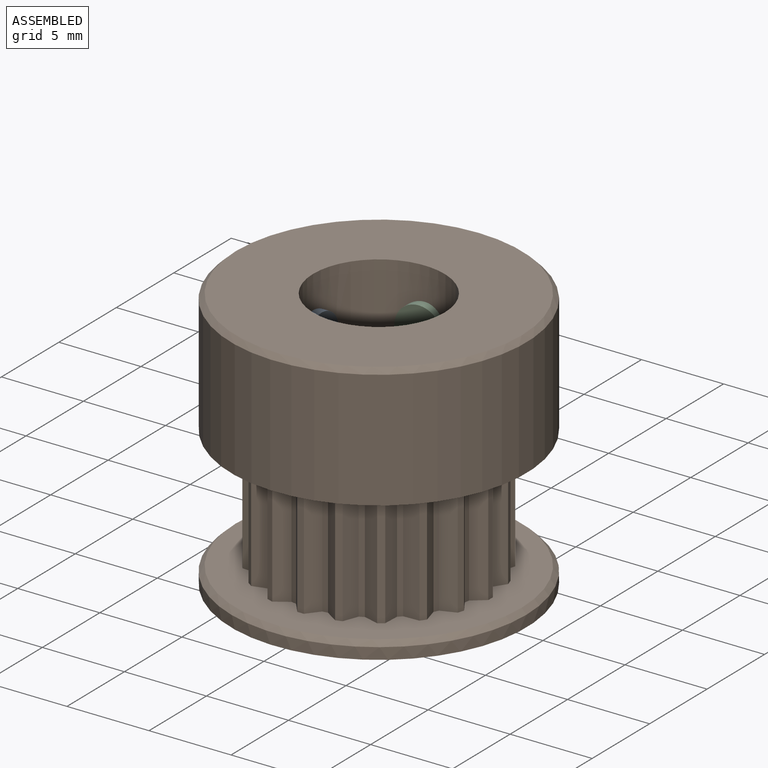
[diagram: assembled view]
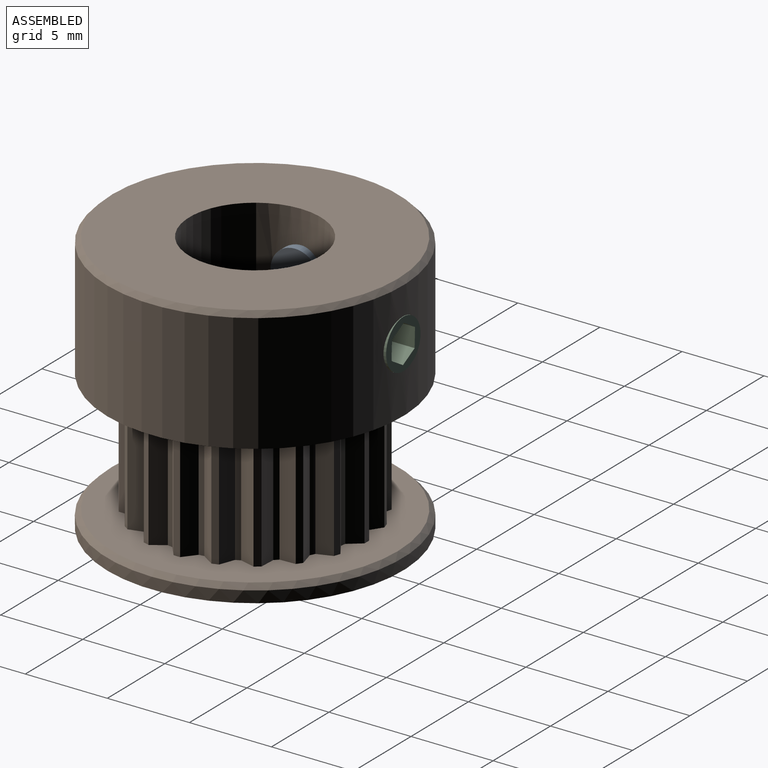
[diagram: assembled view, second angle]
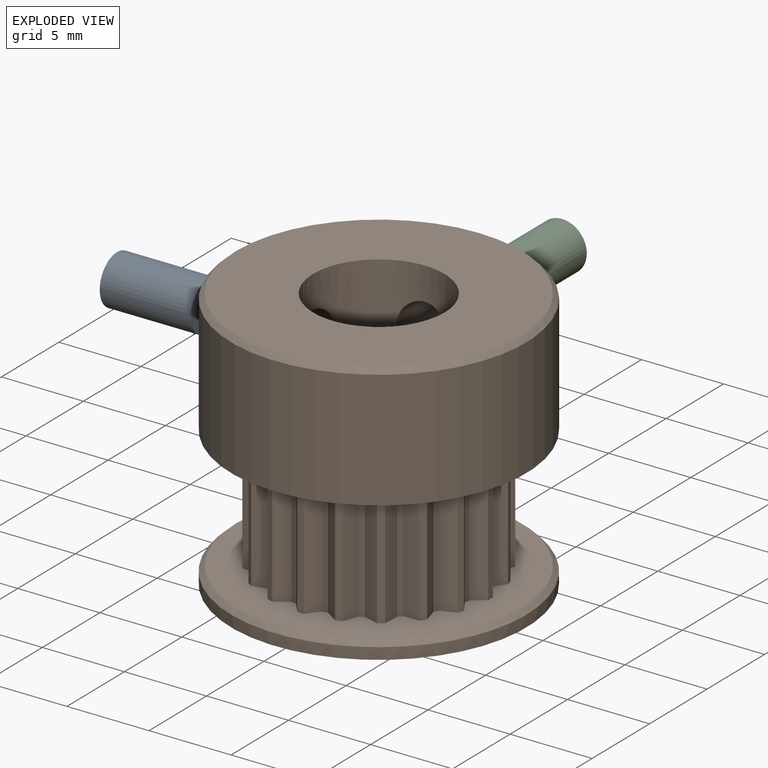
[diagram: exploded view]
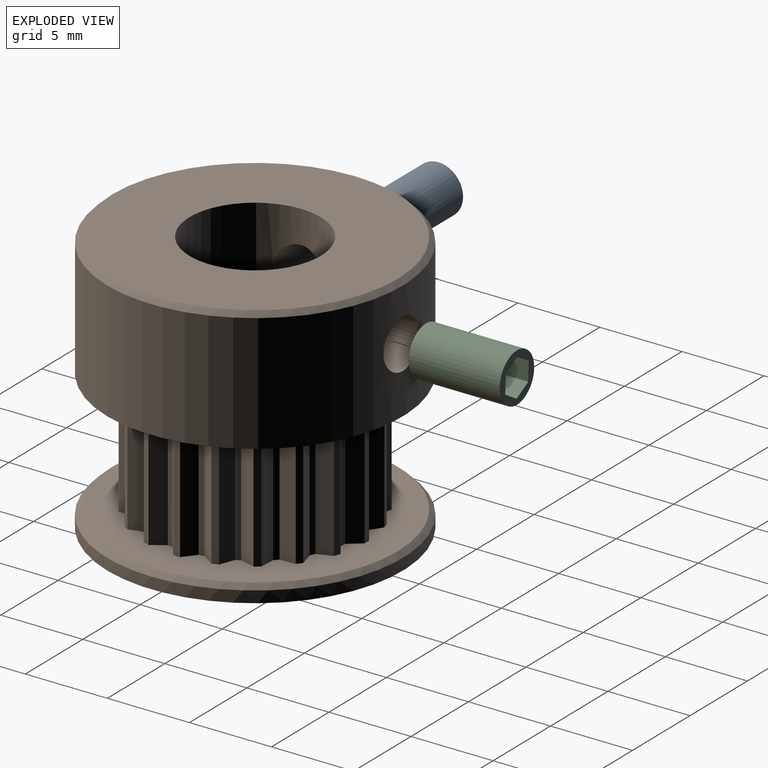
[diagram: exploded view, second angle]
ASSEMBLY  parts=3 mates=2
PART A: 10 faces, bbox 5.6x3x3 mm
  f0: cylinder r=1.5mm len=5.55mm, axis (-1,0,0), area 52.3mm2, adj f1,f2
  f1: plane 3x3mm, normal (1,0,0), area 7.1mm2, adj f0
  f2: plane 3x3mm, normal (-1,0,0), area 3.6mm2, adj f0,f3,f4,f5,f6,f7,f8
  f3: plane 1.4x0.98mm, normal (0,-0.52,0.85), area 1.6mm2, adj f2,f4,f8,f9
  f4: plane 1.4x1.02mm, normal (0,0.48,0.88), area 1.6mm2, adj f2,f3,f5,f9
  f5: plane 1.4x1.15mm, normal (0,1,0.03), area 1.6mm2, adj f2,f4,f6,f9
  f6: plane 1.4x0.98mm, normal (0,0.52,-0.85), area 1.6mm2, adj f2,f5,f7,f9
  f7: plane 1.4x1.02mm, normal (0,-0.48,-0.88), area 1.6mm2, adj f2,f6,f8,f9
  f8: plane 1.4x1.15mm, normal (0,-1,-0.03), area 1.6mm2, adj f2,f3,f7,f9
  f9: plane 2.31x2.03mm, normal (-1,0,0), area 3.5mm2, adj f3,f4,f5,f6,f7,f8
PART B: 91 faces, bbox 18x18x16 mm
  f0: cylinder r=1.5mm len=5.29mm, axis (0,-1,0), area 47.9mm2, adj f81,f84
  f1: cylinder r=6.11mm len=7.5mm, axis (0,0,-1), area 2.4mm2, adj f4,f79,f80,f85
  f2: plane 7.5x0.9mm, normal (0.94,-0.35,0), area 7.2mm2, adj f3,f5,f79,f80
  f3: plane 7.5x0.38mm, normal (0.31,-0.95,0), area 3mm2, adj f2,f4,f79,f80
  f4: plane 7.5x0.8mm, normal (-0.55,-0.83,0), area 7.2mm2, adj f1,f3,f79,f80
  f5: cylinder r=6.11mm len=7.5mm, axis (0,0,-1), area 2.4mm2, adj f2,f8,f79,f80
  f6: plane 7.5x0.96mm, normal (1,-0.04,0), area 7.2mm2, adj f7,f9,f79,f80
  f7: plane 7.5x0.32mm, normal (0.59,-0.81,0), area 3mm2, adj f6,f8,f79,f80
  f8: plane 7.5x0.93mm, normal (-0.27,-0.96,0), area 7.2mm2, adj f5,f7,f79,f80
  f9: cylinder r=6.11mm len=7.5mm, axis (0,0,-1), area 2.4mm2, adj f6,f12,f79,f80
  f10: plane 7.5x0.93mm, normal (0.96,0.27,0), area 7.2mm2, adj f11,f13,f79,f80
  f11: plane 7.5x0.32mm, normal (0.81,-0.59,0), area 3mm2, adj f10,f12,f79,f80
  f12: plane 7.5x0.96mm, normal (0.04,-1,0), area 7.2mm2, adj f9,f11,f79,f80
  f13: cylinder r=6.11mm len=7.5mm, axis (0,0,-1), area 2.4mm2, adj f10,f16,f79,f80
  f14: plane 7.5x0.8mm, normal (0.83,0.55,0), area 7.2mm2, adj f15,f17,f79,f80
  f15: plane 7.5x0.38mm, normal (0.95,-0.31,0), area 3mm2, adj f14,f16,f79,f80
  f16: plane 7.5x0.9mm, normal (0.35,-0.94,0), area 7.2mm2, adj f13,f15,f79,f80
  f17: cylinder r=6.11mm len=7.5mm, axis (0,0,-1), area 2.4mm2, adj f14,f20,f79,f80
  f18: plane 7.5x0.75mm, normal (0.62,0.78,0), area 7.2mm2, adj f19,f21,f79,f80
  f19: plane 7.5x0.4mm, normal (1,0,0), area 3mm2, adj f18,f20,f79,f80
  f20: plane 7.5x0.75mm, normal (0.62,-0.78,0), area 7.2mm2, adj f17,f19,f79,f80
  f21: cylinder r=6.11mm len=7.5mm, axis (0,0,-1), area 2.4mm2, adj f18,f24,f79,f80
  f22: plane 7.5x0.9mm, normal (0.35,0.94,0), area 7.2mm2, adj f23,f25,f79,f80
  f23: plane 7.5x0.38mm, normal (0.95,0.31,0), area 3mm2, adj f22,f24,f79,f80
  f24: plane 7.5x0.8mm, normal (0.83,-0.55,0), area 7.2mm2, adj f21,f23,f79,f80
  f25: cylinder r=6.11mm len=7.5mm, axis (0,0,-1), area 2.4mm2, adj f22,f28,f79,f80
  f26: plane 7.5x0.96mm, normal (0.04,1,0), area 7.2mm2, adj f27,f29,f79,f80
  f27: plane 7.5x0.32mm, normal (0.81,0.59,0), area 3mm2, adj f26,f28,f79,f80
  f28: plane 7.5x0.93mm, normal (0.96,-0.27,0), area 7.2mm2, adj f25,f27,f79,f80
  f29: cylinder r=6.11mm len=7.5mm, axis (0,0,-1), area 2.4mm2, adj f26,f32,f79,f80
  f30: plane 7.5x0.93mm, normal (-0.27,0.96,0), area 7.2mm2, adj f31,f33,f79,f80
  f31: plane 7.5x0.32mm, normal (0.59,0.81,0), area 3mm2, adj f30,f32,f79,f80
  f32: plane 7.5x0.96mm, normal (1,0.04,0), area 7.2mm2, adj f29,f31,f79,f80
  f33: cylinder r=6.11mm len=7.5mm, axis (0,0,-1), area 2.4mm2, adj f30,f36,f79,f80
  f34: plane 7.5x0.8mm, normal (-0.55,0.83,0), area 7.2mm2, adj f35,f37,f79,f80
  f35: plane 7.5x0.38mm, normal (0.31,0.95,0), area 3mm2, adj f34,f36,f79,f80
  f36: plane 7.5x0.9mm, normal (0.94,0.35,0), area 7.2mm2, adj f33,f35,f79,f80
  f37: cylinder r=6.11mm len=7.5mm, axis (0,0,-1), area 2.4mm2, adj f34,f40,f79,f80
  f38: plane 7.5x0.75mm, normal (-0.78,0.62,0), area 7.2mm2, adj f39,f41,f79,f80
  f39: plane 7.5x0.4mm, normal (0,1,0), area 3mm2, adj f38,f40,f79,f80
  f40: plane 7.5x0.75mm, normal (0.78,0.62,0), area 7.2mm2, adj f37,f39,f79,f80
  f41: cylinder r=6.11mm len=7.5mm, axis (0,0,-1), area 2.4mm2, adj f38,f44,f79,f80
  f42: plane 7.5x0.9mm, normal (-0.94,0.35,0), area 7.2mm2, adj f43,f45,f79,f80
  f43: plane 7.5x0.38mm, normal (-0.31,0.95,0), area 3mm2, adj f42,f44,f79,f80
  f44: plane 7.5x0.8mm, normal (0.55,0.83,0), area 7.2mm2, adj f41,f43,f79,f80
  f45: cylinder r=6.11mm len=7.5mm, axis (0,0,-1), area 2.4mm2, adj f42,f48,f79,f80
  f46: plane 7.5x0.96mm, normal (-1,0.04,0), area 7.2mm2, adj f47,f49,f79,f80
  f47: plane 7.5x0.32mm, normal (-0.59,0.81,0), area 3mm2, adj f46,f48,f79,f80
  f48: plane 7.5x0.93mm, normal (0.27,0.96,0), area 7.2mm2, adj f45,f47,f79,f80
  f49: cylinder r=6.11mm len=7.5mm, axis (0,0,-1), area 2.4mm2, adj f46,f52,f79,f80
  f50: plane 7.5x0.93mm, normal (-0.96,-0.27,0), area 7.2mm2, adj f51,f53,f79,f80
  f51: plane 7.5x0.32mm, normal (-0.81,0.59,0), area 3mm2, adj f50,f52,f79,f80
  f52: plane 7.5x0.96mm, normal (-0.04,1,0), area 7.2mm2, adj f49,f51,f79,f80
  f53: cylinder r=6.11mm len=7.5mm, axis (0,0,-1), area 2.4mm2, adj f50,f56,f79,f80
  f54: plane 7.5x0.8mm, normal (-0.83,-0.55,0), area 7.2mm2, adj f55,f57,f79,f80
  f55: plane 7.5x0.38mm, normal (-0.95,0.31,0), area 3mm2, adj f54,f56,f79,f80
  f56: plane 7.5x0.9mm, normal (-0.35,0.94,0), area 7.2mm2, adj f53,f55,f79,f80
  f57: cylinder r=6.11mm len=7.5mm, axis (0,0,-1), area 2.4mm2, adj f54,f60,f79,f80
  f58: plane 7.5x0.75mm, normal (-0.62,-0.78,0), area 7.2mm2, adj f59,f61,f79,f80
  f59: plane 7.5x0.4mm, normal (-1,0,0), area 3mm2, adj f58,f60,f79,f80
  f60: plane 7.5x0.75mm, normal (-0.62,0.78,0), area 7.2mm2, adj f57,f59,f79,f80
  f61: cylinder r=6.11mm len=7.5mm, axis (0,0,-1), area 2.4mm2, adj f58,f64,f79,f80
  f62: plane 7.5x0.9mm, normal (-0.35,-0.94,0), area 7.2mm2, adj f63,f65,f79,f80
  f63: plane 7.5x0.38mm, normal (-0.95,-0.31,0), area 3mm2, adj f62,f64,f79,f80
  f64: plane 7.5x0.8mm, normal (-0.83,0.55,0), area 7.2mm2, adj f61,f63,f79,f80
  f65: cylinder r=6.11mm len=7.5mm, axis (0,0,-1), area 2.4mm2, adj f62,f68,f79,f80
  f66: plane 7.5x0.96mm, normal (-0.04,-1,0), area 7.2mm2, adj f67,f69,f79,f80
  f67: plane 7.5x0.32mm, normal (-0.81,-0.59,0), area 3mm2, adj f66,f68,f79,f80
  f68: plane 7.5x0.93mm, normal (-0.96,0.27,0), area 7.2mm2, adj f65,f67,f79,f80
  f69: cylinder r=6.11mm len=7.5mm, axis (0,0,-1), area 2.4mm2, adj f66,f72,f79,f80
  f70: plane 7.5x0.93mm, normal (0.27,-0.96,0), area 7.2mm2, adj f71,f73,f79,f80
  f71: plane 7.5x0.32mm, normal (-0.59,-0.81,0), area 3mm2, adj f70,f72,f79,f80
  f72: plane 7.5x0.96mm, normal (-1,-0.04,0), area 7.2mm2, adj f69,f71,f79,f80
  f73: cylinder r=6.11mm len=7.5mm, axis (0,0,-1), area 2.4mm2, adj f70,f76,f79,f80
  f74: plane 7.5x0.8mm, normal (0.55,-0.83,0), area 7.2mm2, adj f75,f77,f79,f80
  f75: plane 7.5x0.38mm, normal (-0.31,-0.95,0), area 3mm2, adj f74,f76,f79,f80
  f76: plane 7.5x0.9mm, normal (-0.94,-0.35,0), area 7.2mm2, adj f73,f75,f79,f80
  f77: cylinder r=6.11mm len=7.5mm, axis (0,0,-1), area 2.4mm2, adj f74,f79,f80,f87
  f78: cylinder r=9mm len=18mm, axis (0,0,-1), area 39.6mm2, adj f83,f89
  f79: plane 17.4x17.4mm, normal (0,0,1), area 106.6mm2, adj f1,f2,f3,f4,f5,f6,f7,f8
  f80: plane 18x18mm, normal (0,0,-1), area 123.3mm2, adj f1,f2,f3,f4,f5,f6,f7,f8
  f81: cylinder r=9mm len=18mm, axis (0,0,-1), area 393mm2, adj f0,f80,f88,f90
  f82: plane 17.4x17.4mm, normal (0,0,1), area 187.5mm2, adj f84,f88
  f83: plane 18x18mm, normal (0,0,-1), area 204.2mm2, adj f78,f84
  f84: cylinder r=4mm len=16mm, axis (0,0,1), area 387.7mm2, adj f0,f82,f83,f90
  f85: plane 7.5x0.75mm, normal (0.78,-0.62,0), area 7.2mm2, adj f1,f79,f80,f86
  f86: plane 7.5x0.4mm, normal (0,-1,0), area 3mm2, adj f79,f80,f85,f87
  f87: plane 7.5x0.75mm, normal (-0.78,-0.62,0), area 7.2mm2, adj f77,f79,f80,f86
  f88: cone r=9mm half-angle=45deg, axis (0,0,-1), area 23.6mm2, adj f81,f82
  f89: cone r=9mm half-angle=45deg, axis (0,0,-1), area 23.6mm2, adj f78,f79
  f90: cylinder r=1.5mm len=5.29mm, axis (1,0,0), area 47.9mm2, adj f81,f84
PART C: 10 faces, bbox 3x5.6x3 mm
  f0: cylinder r=1.5mm len=5.55mm, axis (0,1,0), area 52.3mm2, adj f1,f2
  f1: plane 3x3mm, normal (0,-1,0), area 7.1mm2, adj f0
  f2: plane 3x3mm, normal (0,1,0), area 3.6mm2, adj f0,f3,f4,f5,f6,f7,f8
  f3: plane 1.4x0.98mm, normal (-0.52,0,0.85), area 1.6mm2, adj f2,f4,f8,f9
  f4: plane 1.4x1.02mm, normal (0.48,0,0.88), area 1.6mm2, adj f2,f3,f5,f9
  f5: plane 1.4x1.15mm, normal (1,0,0.03), area 1.6mm2, adj f2,f4,f6,f9
  f6: plane 1.4x0.98mm, normal (0.52,0,-0.85), area 1.6mm2, adj f2,f5,f7,f9
  f7: plane 1.4x1.02mm, normal (-0.48,0,-0.88), area 1.6mm2, adj f2,f6,f8,f9
  f8: plane 1.4x1.15mm, normal (-1,0,-0.03), area 1.6mm2, adj f2,f3,f7,f9
  f9: plane 2.31x2.03mm, normal (0,1,0), area 3.5mm2, adj f3,f4,f5,f6,f7,f8
PLACE A t=(-0.53,0,0)mm
PLACE B at identity
PLACE C t=(0,0.53,0)mm
MATE fastened A.f0 <-> B.f90  axis (-1,0,0) through (-9.03,0,12.5)mm
MATE fastened C.f0 <-> B.f0  axis (0,1,0) through (0,9.03,12.5)mm
